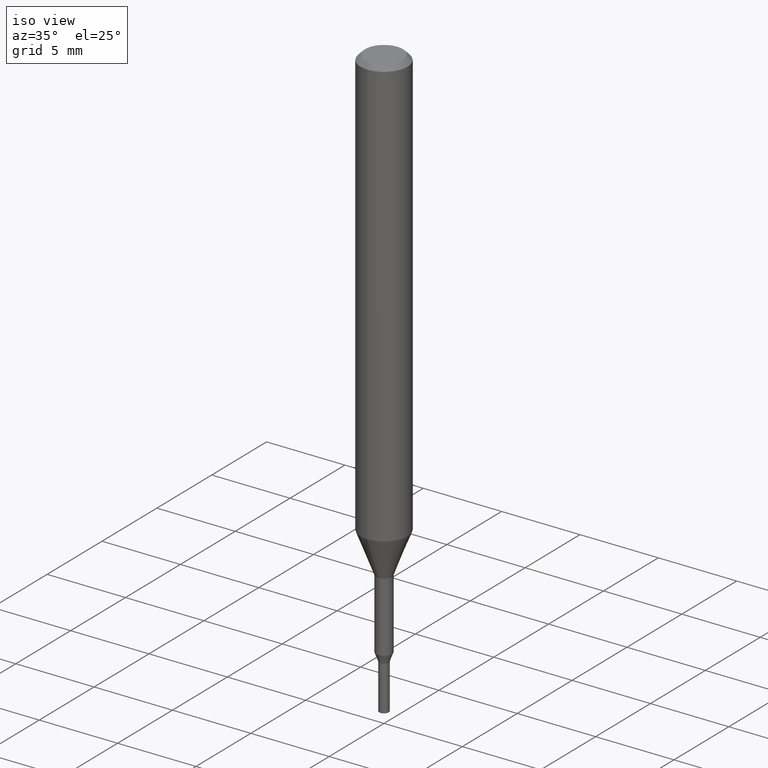
[diagram: clean part render]
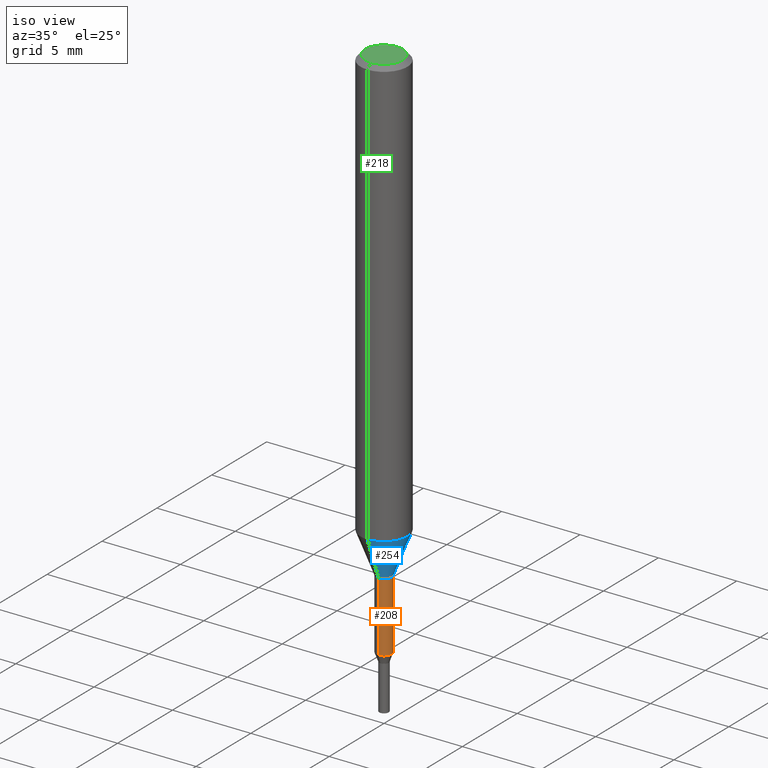
[diagram: same view with three faces highlighted in distinct colors, each labeled with its STEP entity id]
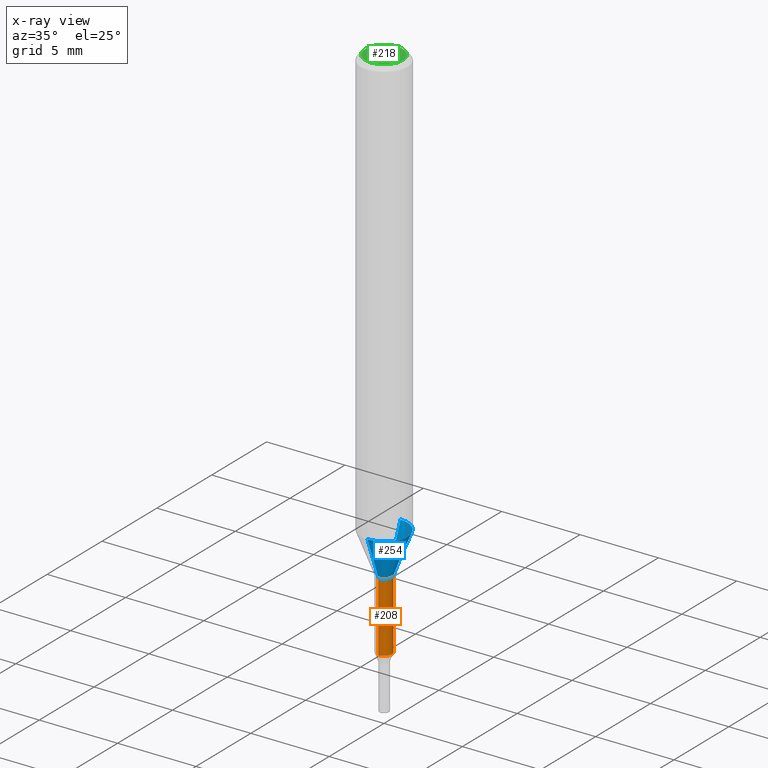
[diagram: x-ray of the same camera — body ghosted, the three highlighted faces saturated]
A machine part, iso view with three faces highlighted in distinct colors.
The next image is the same camera in x-ray (body ghosted, the three faces saturated) — at least one of them is partly hidden behind the body in this view.
Their STEP definitions:

[orange] entity #208 — the highlighted cylindrical surface (edge-blend (fillet) strip) has radius 0.5 mm, axis along (-0, -0, 1).
#136=EDGE_CURVE('',#206,#172,#317,.T.);
#138=VERTEX_POINT('',#319);
#146=EDGE_CURVE('',#172,#138,#327,.T.);
#172=VERTEX_POINT('',#356);
#206=VERTEX_POINT('',#394);
#208=ADVANCED_FACE('',(#396),#397,.T.);
#210=EDGE_CURVE('',#244,#138,#399,.T.);
#240=EDGE_CURVE('',#244,#206,#432,.T.);
#244=VERTEX_POINT('',#436);
#317=CIRCLE('',#517,0.49995);
#319=CARTESIAN_POINT('',(6.12241946593498E-017,-0.49995,-30.0));
#327=LINE('',#531,#532);
#356=CARTESIAN_POINT('',(6.12241946593498E-017,-0.49995,-34.451));
#394=CARTESIAN_POINT('',(0.0,0.49995,-34.451));
#396=FACE_OUTER_BOUND('',#616,.T.);
#397=CYLINDRICAL_SURFACE('',#617,0.49995);
#399=CIRCLE('',#620,0.49995);
#432=LINE('',#668,#669);
#436=CARTESIAN_POINT('',(0.0,0.49995,-30.0));
#517=AXIS2_PLACEMENT_3D('',#750,#751,#752);
#531=CARTESIAN_POINT('',(6.12241946593498E-017,-0.49995,-32.2255));
#532=VECTOR('',#757,1.0);
#616=EDGE_LOOP('',(#835,#836,#837,#838));
#617=AXIS2_PLACEMENT_3D('',#839,#840,#841);
#620=AXIS2_PLACEMENT_3D('',#842,#843,#844);
#668=CARTESIAN_POINT('',(-6.12241946593498E-017,0.49995,-32.2255));
#669=VECTOR('',#884,1.0);
#750=CARTESIAN_POINT('',(0.0,0.0,-34.451));
#751=DIRECTION('',(0.0,0.0,-1.0));
#752=DIRECTION('',(0.0,1.0,0.0));
#757=DIRECTION('',(-0.0,-0.0,1.0));
#835=ORIENTED_EDGE('',*,*,#240,.F.);
#836=ORIENTED_EDGE('',*,*,#210,.T.);
#837=ORIENTED_EDGE('',*,*,#146,.F.);
#838=ORIENTED_EDGE('',*,*,#136,.F.);
#839=CARTESIAN_POINT('',(0.0,0.0,-32.2255));
#840=DIRECTION('',(-0.0,-0.0,1.0));
#841=DIRECTION('',(0.0,1.0,0.0));
#842=CARTESIAN_POINT('',(0.0,0.0,-30.0));
#843=DIRECTION('',(0.0,0.0,-1.0));
#844=DIRECTION('',(0.0,1.0,0.0));
#884=DIRECTION('',(0.0,0.0,-1.0));

[blue] entity #254 — the highlighted conical surface has half-angle 21.001 deg.
#126=VERTEX_POINT('',#306);
#156=EDGE_CURVE('',#126,#200,#338,.T.);
#176=VERTEX_POINT('',#360);
#184=VERTEX_POINT('',#370);
#200=VERTEX_POINT('',#387);
#204=EDGE_CURVE('',#176,#126,#392,.T.);
#220=EDGE_CURVE('',#184,#176,#411,.T.);
#222=EDGE_CURVE('',#184,#200,#413,.T.);
#254=ADVANCED_FACE('',(#446),#447,.T.);
#306=CARTESIAN_POINT('',(6.12303176911189E-017,-0.5,-30.0));
#338=LINE('',#546,#547);
#360=CARTESIAN_POINT('',(0.0,0.5,-30.0));
#370=CARTESIAN_POINT('',(0.0,1.5,-27.395));
#387=CARTESIAN_POINT('',(1.83690953073357E-016,-1.5,-27.395));
#392=CIRCLE('',#612,0.5);
#411=LINE('',#635,#636);
#413=CIRCLE('',#639,1.5);
#446=FACE_OUTER_BOUND('',#686,.T.);
#447=CONICAL_SURFACE('',#687,1.0,0.366530581623394);
#546=CARTESIAN_POINT('',(1.22460635382238E-016,-1.0,-28.6975));
#547=VECTOR('',#771,1.0);
#612=AXIS2_PLACEMENT_3D('',#831,#832,#833);
#635=CARTESIAN_POINT('',(-1.22460635382238E-016,1.0,-28.6975));
#636=VECTOR('',#860,1.0);
#639=AXIS2_PLACEMENT_3D('',#861,#862,#863);
#686=EDGE_LOOP('',(#895,#896,#897,#898));
#687=AXIS2_PLACEMENT_3D('',#899,#900,#901);
#771=DIRECTION('',(4.38872745501645E-017,-0.35837862847256,0.933576327171018));
#831=CARTESIAN_POINT('',(0.0,0.0,-30.0));
#832=DIRECTION('',(0.0,0.0,-1.0));
#833=DIRECTION('',(0.0,1.0,0.0));
#860=DIRECTION('',(4.38872745501645E-017,-0.35837862847256,-0.933576327171018));
#861=CARTESIAN_POINT('',(0.0,0.0,-27.395));
#862=DIRECTION('',(0.0,0.0,-1.0));
#863=DIRECTION('',(0.0,1.0,0.0));
#895=ORIENTED_EDGE('',*,*,#220,.F.);
#896=ORIENTED_EDGE('',*,*,#222,.T.);
#897=ORIENTED_EDGE('',*,*,#156,.F.);
#898=ORIENTED_EDGE('',*,*,#204,.F.);
#899=CARTESIAN_POINT('',(0.0,0.0,-28.6975));
#900=DIRECTION('',(-0.0,-0.0,1.0));
#901=DIRECTION('',(0.0,1.0,0.0));

[green] entity #218 — the highlighted planar face has unit normal (-0, 0, 1).
#122=EDGE_CURVE('',#242,#158,#302,.T.);
#158=VERTEX_POINT('',#340);
#218=ADVANCED_FACE('',(#408),#409,.T.);
#242=VERTEX_POINT('',#434);
#246=EDGE_CURVE('',#158,#242,#438,.T.);
#302=CIRCLE('',#495,1.2);
#340=CARTESIAN_POINT('',(1.46952762458685E-016,-1.2,0.0));
#408=FACE_OUTER_BOUND('',#631,.T.);
#409=PLANE('',#632);
#434=CARTESIAN_POINT('',(0.0,1.2,0.0));
#438=CIRCLE('',#676,1.2);
#495=AXIS2_PLACEMENT_3D('',#738,#739,#740);
#631=EDGE_LOOP('',(#855,#856));
#632=AXIS2_PLACEMENT_3D('',#857,#858,#859);
#676=AXIS2_PLACEMENT_3D('',#885,#886,#887);
#738=CARTESIAN_POINT('',(0.0,0.0,0.0));
#739=DIRECTION('',(0.0,0.0,-1.0));
#740=DIRECTION('',(0.0,1.0,0.0));
#855=ORIENTED_EDGE('',*,*,#122,.F.);
#856=ORIENTED_EDGE('',*,*,#246,.F.);
#857=CARTESIAN_POINT('',(0.0,0.6,0.0));
#858=DIRECTION('',(-0.0,0.0,1.0));
#859=DIRECTION('',(0.0,-1.0,0.0));
#885=CARTESIAN_POINT('',(0.0,0.0,0.0));
#886=DIRECTION('',(0.0,0.0,-1.0));
#887=DIRECTION('',(0.0,1.0,0.0));